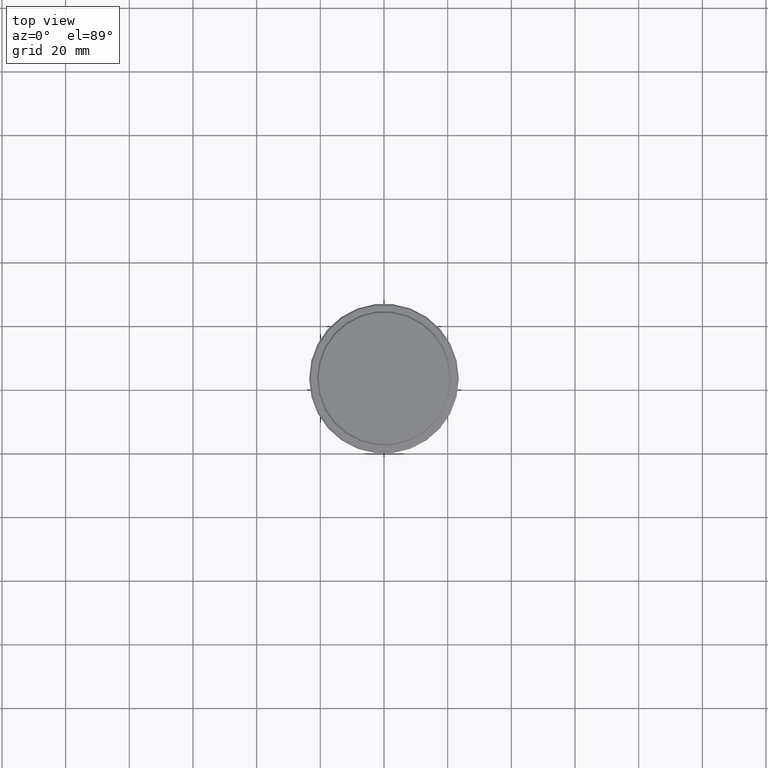
[diagram: clean part render]
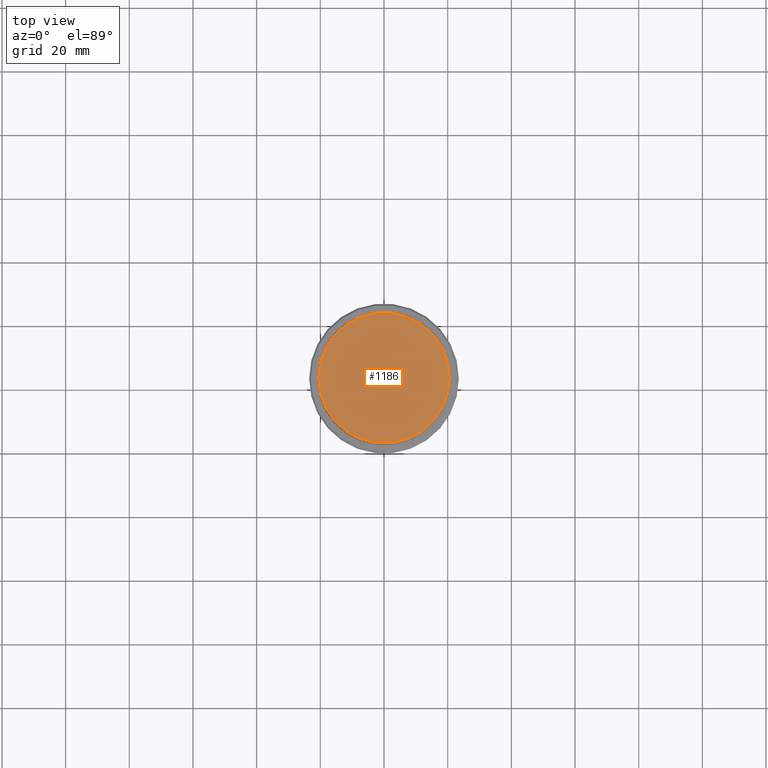
[diagram: same view with one face highlighted and labeled with its STEP entity id]
A machine part, top view. The second image highlights one B-rep face of the part: STEP entity #1186.
In plain terms, the highlighted planar face has unit normal (0, -0, 1).
Its self-contained STEP definition (entity closure, byte-faithful):
#97 = CARTESIAN_POINT ( 'NONE',  ( 20.49999999999998934, 2.541142108230757085E-15, 0.000000000000000000 ) ) ;
#136 = VERTEX_POINT ( 'NONE', #97 ) ;
#161 = DIRECTION ( 'NONE',  ( -0.000000000000000000, -0.000000000000000000, 1.000000000000000000 ) ) ;
#172 = FACE_OUTER_BOUND ( 'NONE', #956, .T. ) ;
#219 = CARTESIAN_POINT ( 'NONE',  ( -20.49999999999998934, 0.000000000000000000, 0.000000000000000000 ) ) ;
#320 = ORIENTED_EDGE ( 'NONE', *, *, #1129, .T. ) ;
#400 = CIRCLE ( 'NONE', #1212, 20.49999999999998934 ) ;
#402 = VERTEX_POINT ( 'NONE', #219 ) ;
#497 = AXIS2_PLACEMENT_3D ( 'NONE', #698, #161, #693 ) ;
#504 = PLANE ( 'NONE',  #1005 ) ;
#688 = DIRECTION ( 'NONE',  ( -0.000000000000000000, -0.000000000000000000, 1.000000000000000000 ) ) ;
#693 = DIRECTION ( 'NONE',  ( 1.000000000000000000, 0.000000000000000000, 0.000000000000000000 ) ) ;
#698 = CARTESIAN_POINT ( 'NONE',  ( 0.000000000000000000, 0.000000000000000000, 0.000000000000000000 ) ) ;
#812 = DIRECTION ( 'NONE',  ( 1.000000000000000000, 0.000000000000000000, 0.000000000000000000 ) ) ;
#897 = CIRCLE ( 'NONE', #497, 20.49999999999998934 ) ;
#908 = CARTESIAN_POINT ( 'NONE',  ( 0.000000000000000000, 0.000000000000000000, 0.000000000000000000 ) ) ;
#925 = DIRECTION ( 'NONE',  ( 1.000000000000000000, 0.000000000000000000, 0.000000000000000000 ) ) ;
#954 = CARTESIAN_POINT ( 'NONE',  ( 0.000000000000000000, 0.000000000000000000, 0.000000000000000000 ) ) ;
#956 = EDGE_LOOP ( 'NONE', ( #320, #1157 ) ) ;
#1005 = AXIS2_PLACEMENT_3D ( 'NONE', #954, #1348, #925 ) ;
#1129 = EDGE_CURVE ( 'NONE', #402, #136, #400, .T. ) ;
#1153 = EDGE_CURVE ( 'NONE', #136, #402, #897, .T. ) ;
#1157 = ORIENTED_EDGE ( 'NONE', *, *, #1153, .T. ) ;
#1186 = ADVANCED_FACE ( 'NONE', ( #172 ), #504, .T. ) ;
#1212 = AXIS2_PLACEMENT_3D ( 'NONE', #908, #688, #812 ) ;
#1348 = DIRECTION ( 'NONE',  ( 0.000000000000000000, -0.000000000000000000, 1.000000000000000000 ) ) ;